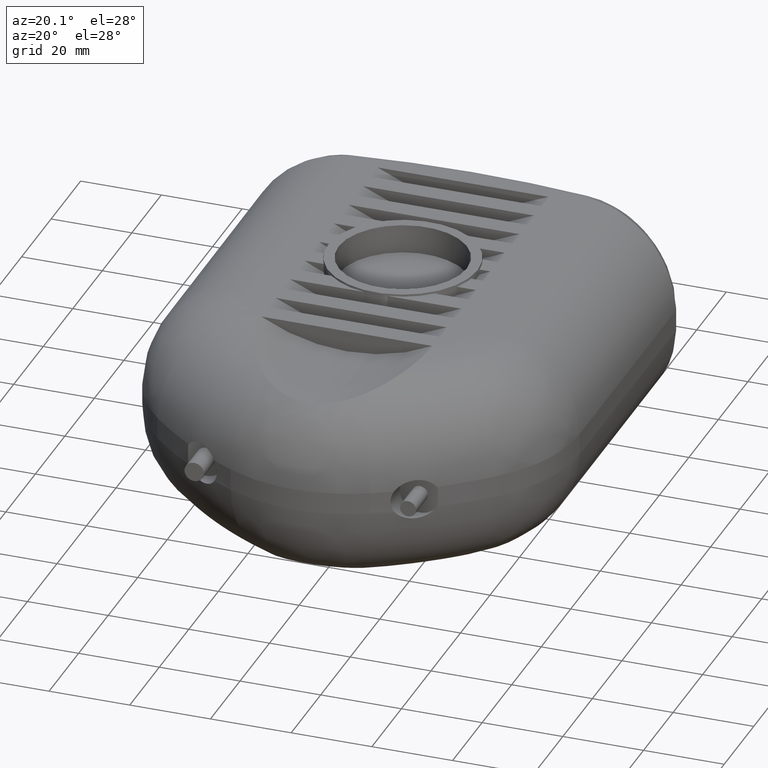
[diagram: clean part render]
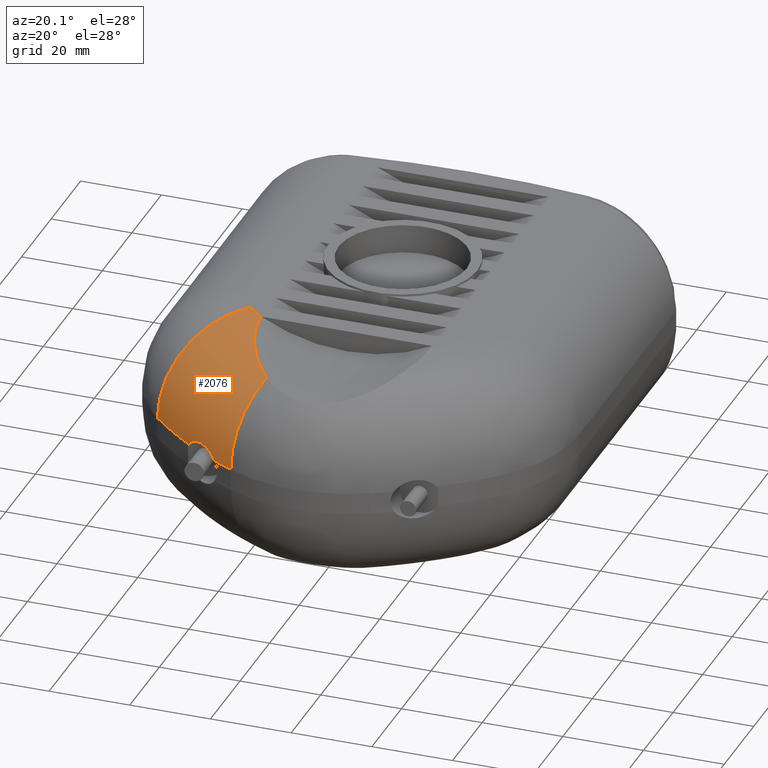
[diagram: same view with one face highlighted and labeled with its STEP entity id]
A machine part, auxiliary view. The second image highlights one B-rep face of the part: STEP entity #2076.
In plain terms, the highlighted toroidal blend (fillet) surface has major radius 81.3116 mm and minor (blend) radius 23.85 mm.
Its self-contained STEP definition (entity closure, byte-faithful):
#26=TOROIDAL_SURFACE('',#2223,81.3116374920057,23.85);
#317=B_SPLINE_CURVE_WITH_KNOTS('',3,(#3240,#3241,#3242,#3243,#3244,#3245,
#3246,#3247,#3248,#3249,#3250,#3251,#3252,#3253,#3254,#3255,#3256,#3257,
#3258,#3259,#3260,#3261),.UNSPECIFIED.,.F.,.F.,(4,2,2,2,2,2,2,2,2,2,4),
(-1.15824454224335,-1.05262565976315,-0.921119062101401,-0.786434568499861,
-0.673721805041707,-0.610310709938628,-0.557620065969908,-0.497181240609674,
-0.397065376191385,-0.164549030648746,0.),.UNSPECIFIED.);
#319=B_SPLINE_CURVE_WITH_KNOTS('',3,(#3293,#3294,#3295,#3296,#3297,#3298,
#3299,#3300),.UNSPECIFIED.,.F.,.F.,(4,2,2,4),(-1.99002375371179,-1.70322278641194,
-0.671957456960744,-0.0164593688965561),.UNSPECIFIED.);
#455=FACE_OUTER_BOUND('',#592,.T.);
#592=EDGE_LOOP('',(#1427,#1428,#1429,#1430,#1431,#1432,#1433));
#752=CIRCLE('',#2224,105.161637492006);
#753=CIRCLE('',#2225,23.85);
#754=CIRCLE('',#2226,81.3116374920056);
#755=CIRCLE('',#2227,23.85);
#756=CIRCLE('',#2228,105.161637492006);
#883=VERTEX_POINT('',#3194);
#887=VERTEX_POINT('',#3229);
#894=VERTEX_POINT('',#3288);
#895=VERTEX_POINT('',#3290);
#896=VERTEX_POINT('',#3292);
#897=VERTEX_POINT('',#3301);
#898=VERTEX_POINT('',#3303);
#1096=EDGE_CURVE('',#883,#887,#317,.T.);
#1106=EDGE_CURVE('',#887,#894,#752,.T.);
#1107=EDGE_CURVE('',#894,#895,#753,.T.);
#1108=EDGE_CURVE('',#895,#896,#319,.T.);
#1109=EDGE_CURVE('',#896,#897,#754,.T.);
#1110=EDGE_CURVE('',#898,#897,#755,.T.);
#1111=EDGE_CURVE('',#898,#883,#756,.T.);
#1427=ORIENTED_EDGE('',*,*,#1096,.T.);
#1428=ORIENTED_EDGE('',*,*,#1106,.T.);
#1429=ORIENTED_EDGE('',*,*,#1107,.T.);
#1430=ORIENTED_EDGE('',*,*,#1108,.T.);
#1431=ORIENTED_EDGE('',*,*,#1109,.T.);
#1432=ORIENTED_EDGE('',*,*,#1110,.F.);
#1433=ORIENTED_EDGE('',*,*,#1111,.T.);
#2076=ADVANCED_FACE('',(#455),#26,.T.);
#2223=AXIS2_PLACEMENT_3D('',#3287,#2505,#2506);
#2224=AXIS2_PLACEMENT_3D('',#3289,#2507,#2508);
#2225=AXIS2_PLACEMENT_3D('',#3291,#2509,#2510);
#2226=AXIS2_PLACEMENT_3D('',#3302,#2511,#2512);
#2227=AXIS2_PLACEMENT_3D('',#3304,#2513,#2514);
#2228=AXIS2_PLACEMENT_3D('',#3305,#2515,#2516);
#2505=DIRECTION('center_axis',(0.,0.,1.));
#2506=DIRECTION('ref_axis',(1.,0.,0.));
#2507=DIRECTION('center_axis',(0.,0.,1.));
#2508=DIRECTION('ref_axis',(-0.590112995955688,-0.807320662441017,0.));
#2509=DIRECTION('center_axis',(-0.884861267108673,0.465854631801417,0.));
#2510=DIRECTION('ref_axis',(-0.465854631801417,-0.884861267108673,0.));
#2511=DIRECTION('center_axis',(0.,0.,-1.));
#2512=DIRECTION('ref_axis',(-0.590112995955688,-0.807320662441017,0.));
#2513=DIRECTION('center_axis',(-0.712460860749902,0.701711851046787,0.));
#2514=DIRECTION('ref_axis',(-0.701711851046787,-0.712460860749902,0.));
#2515=DIRECTION('center_axis',(0.,0.,1.));
#2516=DIRECTION('ref_axis',(-0.590112995955688,-0.807320662441017,0.));
#3194=CARTESIAN_POINT('',(-30.7399882075308,-10.7441888896091,2.65));
#3229=CARTESIAN_POINT('',(-22.2600117924691,-16.4024673997231,2.65));
#3240=CARTESIAN_POINT('Ctrl Pts',(-30.7399882075308,-10.7441888896092,2.64999999999998));
#3241=CARTESIAN_POINT('Ctrl Pts',(-30.5655699242017,-10.8732115643292,2.92906847716716));
#3242=CARTESIAN_POINT('Ctrl Pts',(-30.3664715142394,-11.0135743094933,3.18635199318923));
#3243=CARTESIAN_POINT('Ctrl Pts',(-29.8749872255434,-11.3509662821784,3.71056250620707));
#3244=CARTESIAN_POINT('Ctrl Pts',(-29.5732650679778,-11.5524292034029,3.96278743052159));
#3245=CARTESIAN_POINT('Ctrl Pts',(-28.9216405105366,-11.9835675261569,4.39221702696725));
#3246=CARTESIAN_POINT('Ctrl Pts',(-28.5721414662086,-12.2129112445032,4.5665751796291));
#3247=CARTESIAN_POINT('Ctrl Pts',(-27.9095645205354,-12.6485783974404,4.80794590776073));
#3248=CARTESIAN_POINT('Ctrl Pts',(-27.6002760559258,-12.8522507143464,4.88767347973302));
#3249=CARTESIAN_POINT('Ctrl Pts',(-27.1124168031206,-13.1750557240353,4.96553960765967));
#3250=CARTESIAN_POINT('Ctrl Pts',(-26.9358468537303,-13.292186202512,4.98411046642657));
#3251=CARTESIAN_POINT('Ctrl Pts',(-26.6122548502683,-13.5074729918292,5.00090228798093));
#3252=CARTESIAN_POINT('Ctrl Pts',(-26.4652585103826,-13.6055052389024,5.00203408232117));
#3253=CARTESIAN_POINT('Ctrl Pts',(-26.1502667596645,-13.8160756979066,4.99059546236122));
#3254=CARTESIAN_POINT('Ctrl Pts',(-25.9823072907703,-13.9286645948532,4.97598367670926));
#3255=CARTESIAN_POINT('Ctrl Pts',(-25.5386955219886,-14.2267466830551,4.91465913185735));
#3256=CARTESIAN_POINT('Ctrl Pts',(-25.2644347291121,-14.4117932005157,4.85312772351692));
#3257=CARTESIAN_POINT('Ctrl Pts',(-24.3712157483843,-15.0155836627373,4.57131605121209));
#3258=CARTESIAN_POINT('Ctrl Pts',(-23.7722888300865,-15.4229227709451,4.2474056832256));
#3259=CARTESIAN_POINT('Ctrl Pts',(-22.8732353792918,-16.0189503369286,3.47669461467103));
#3260=CARTESIAN_POINT('Ctrl Pts',(-22.5370738828541,-16.2364189499941,3.09329811169262));
#3261=CARTESIAN_POINT('Ctrl Pts',(-22.2600117924692,-16.402467399723,2.65000000000001));
#3287=CARTESIAN_POINT('Origin',(31.8,73.8,2.65));
#3288=CARTESIAN_POINT('',(-17.1900359134723,-19.253459802399,2.65));
#3289=CARTESIAN_POINT('Origin',(31.8,73.8,2.65));
#3290=CARTESIAN_POINT('',(-12.0025018415945,-9.40006851108321,22.8283182091882));
#3291=CARTESIAN_POINT('Origin',(-6.07940294500851,1.85048141814281,2.65));
#3292=CARTESIAN_POINT('',(-21.2,12.1349175656812,26.5));
#3293=CARTESIAN_POINT('Ctrl Pts',(-12.0025018415945,-9.40006851108322,22.8283182091882));
#3294=CARTESIAN_POINT('Ctrl Pts',(-12.8725373831326,-8.51068554810745,23.0688110403934));
#3295=CARTESIAN_POINT('Ctrl Pts',(-13.6902561438199,-7.57184087961263,23.3230145269226));
#3296=CARTESIAN_POINT('Ctrl Pts',(-17.1907085893306,-3.05371405191473,24.5086123667814));
#3297=CARTESIAN_POINT('Ctrl Pts',(-19.1000847704417,0.91719344653827,25.4313509391428));
#3298=CARTESIAN_POINT('Ctrl Pts',(-20.8746925771286,7.48009861440532,26.3207529588871));
#3299=CARTESIAN_POINT('Ctrl Pts',(-21.2,9.93690295906212,26.5));
#3300=CARTESIAN_POINT('Ctrl Pts',(-21.2,12.1349175656812,26.5));
#3301=CARTESIAN_POINT('',(-25.2573396561606,15.8686407634617,26.5));
#3302=CARTESIAN_POINT('Origin',(31.8,73.8,26.5));
#3303=CARTESIAN_POINT('',(-41.9931673036265,-1.12355076542353,2.65));
#3304=CARTESIAN_POINT('Origin',(-25.2573396561606,15.8686407634617,2.65));
#3305=CARTESIAN_POINT('Origin',(31.8,73.8,2.65));